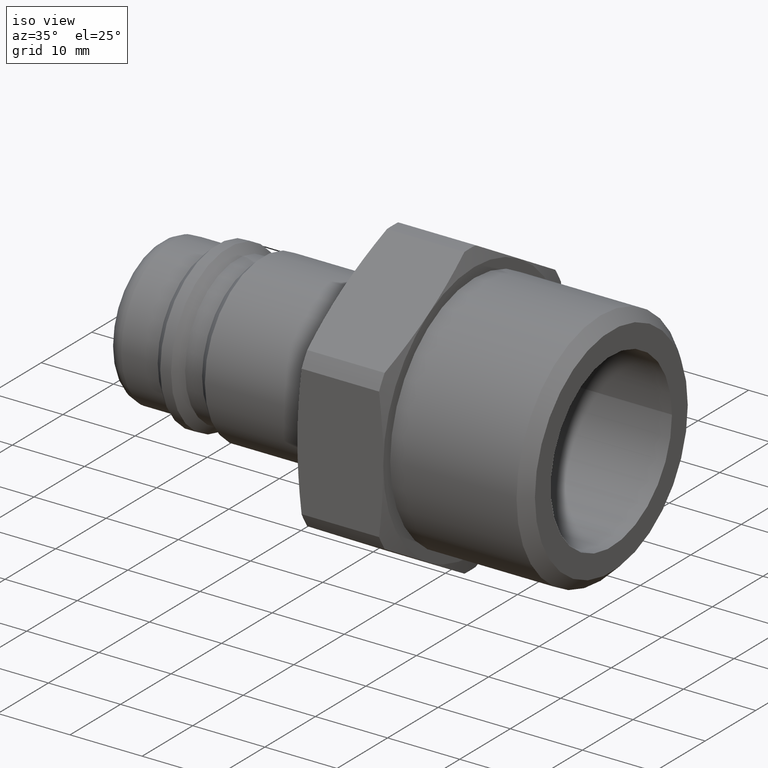
[diagram: clean part render]
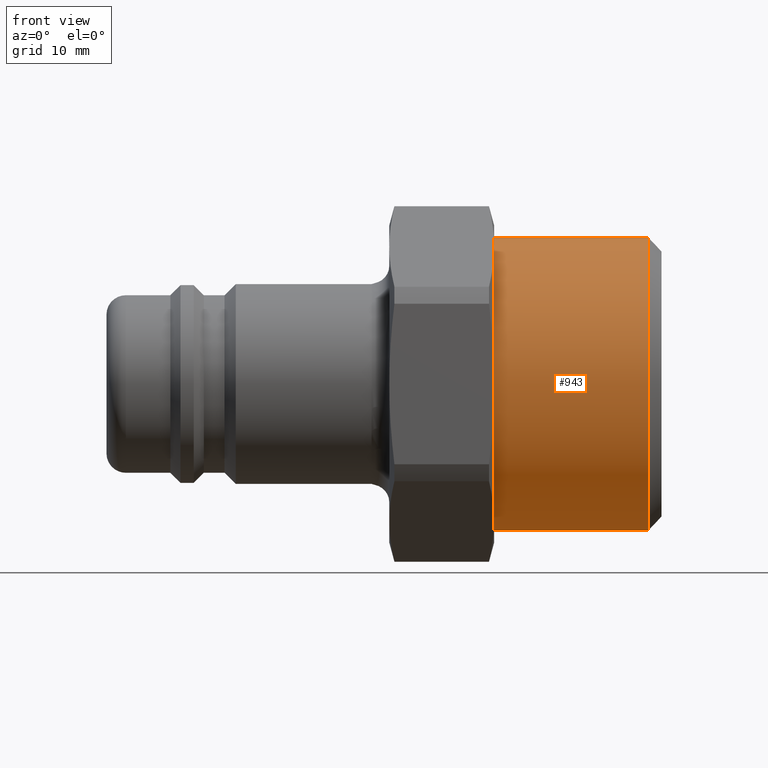
[diagram: tour spotlight — one face highlighted and labeled with its STEP entity id]
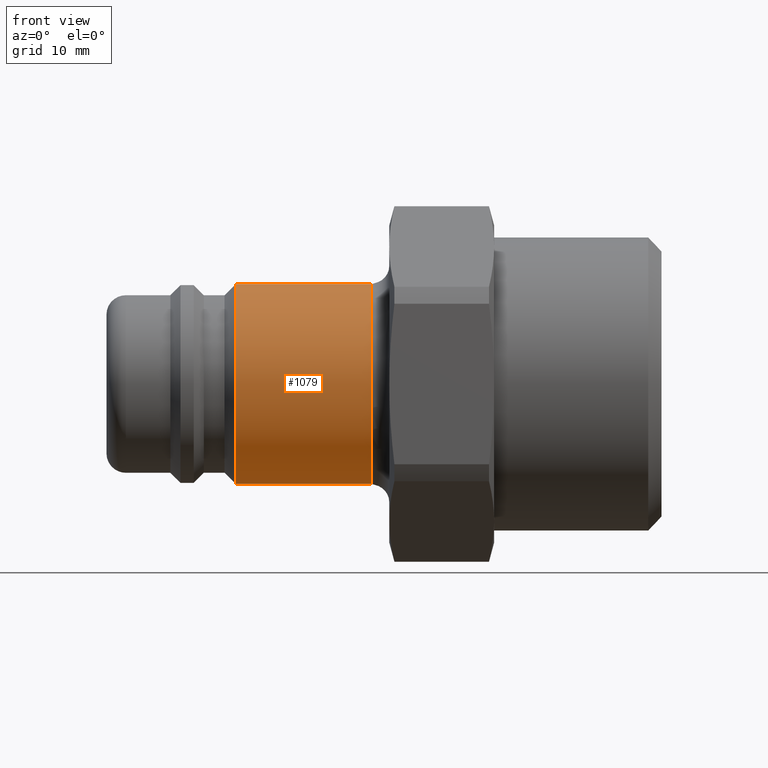
[diagram: tour spotlight — one face highlighted and labeled with its STEP entity id]
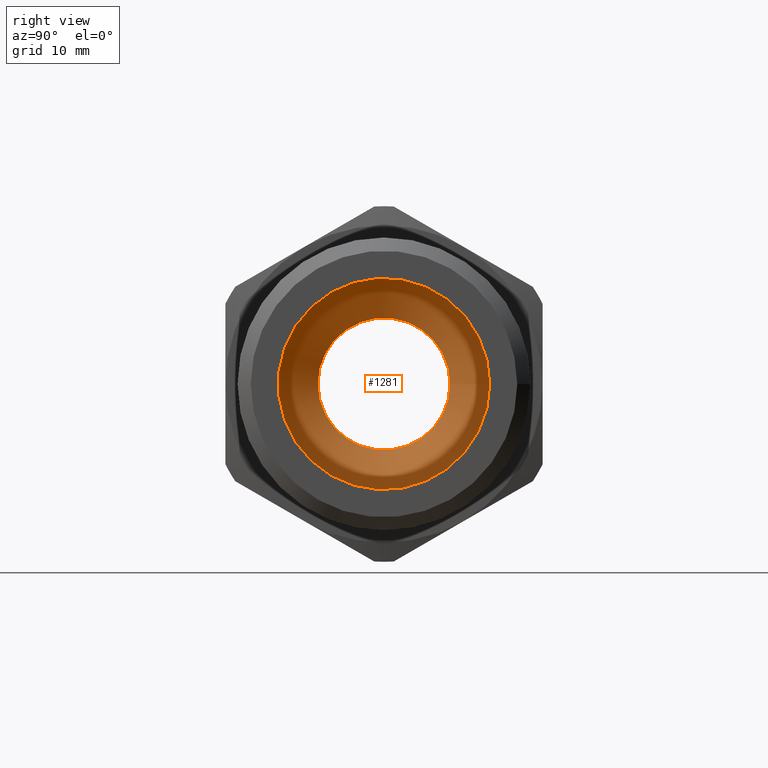
[diagram: tour spotlight — one face highlighted and labeled with its STEP entity id]
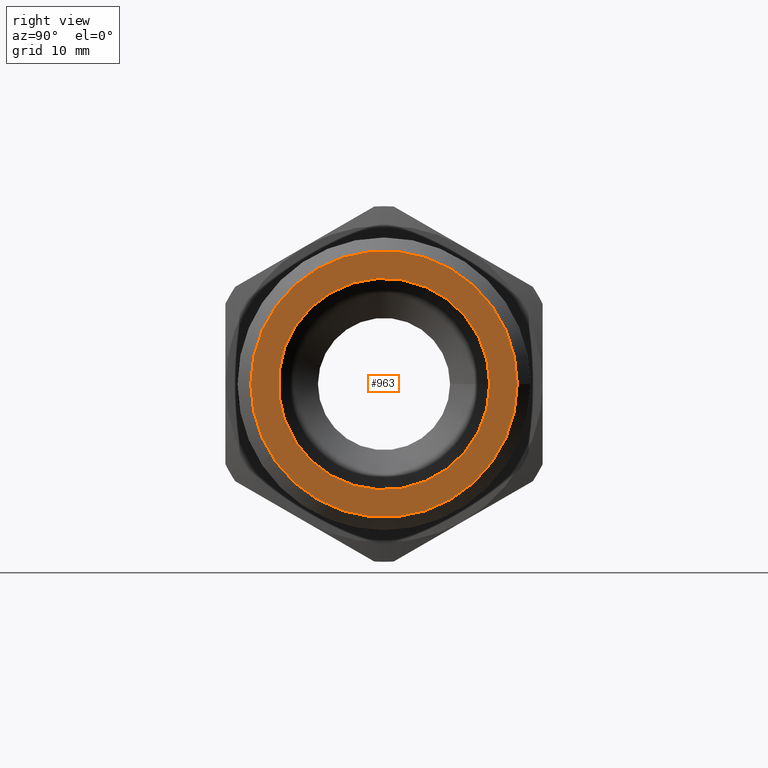
[diagram: tour spotlight — one face highlighted and labeled with its STEP entity id]
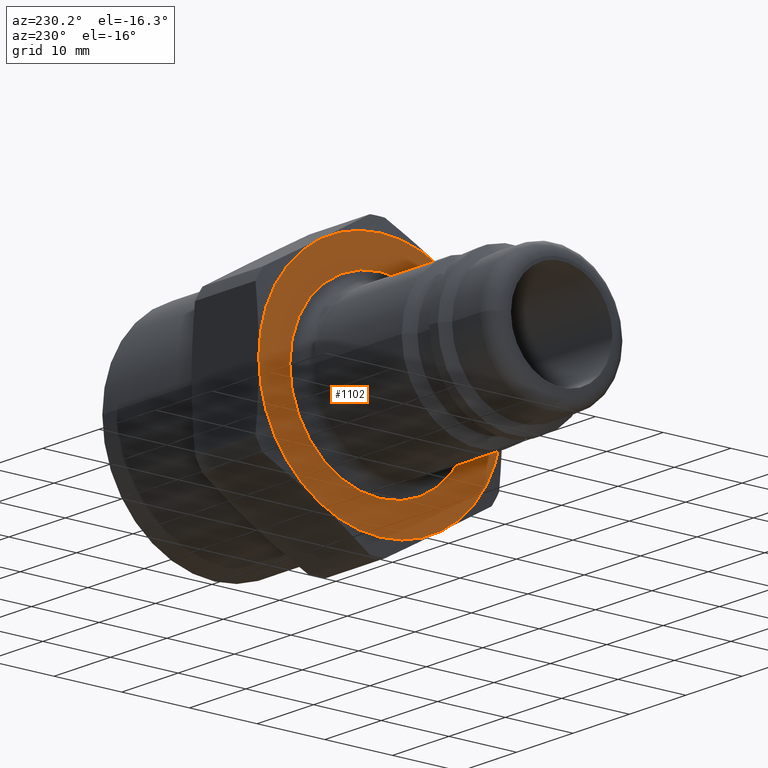
[diagram: tour spotlight — one face highlighted and labeled with its STEP entity id]
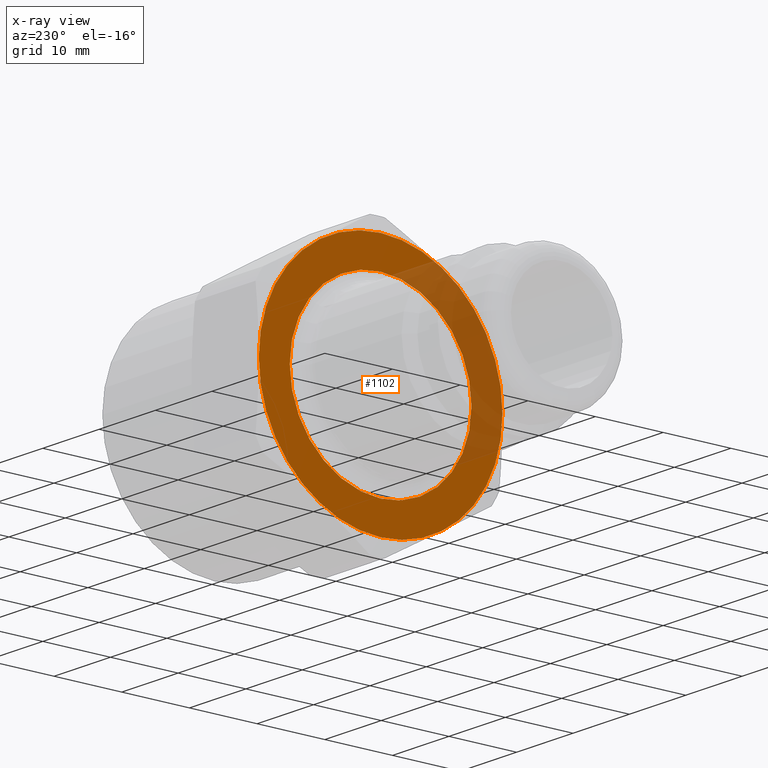
[diagram: x-ray of the same camera — body ghosted, this tour face saturated]
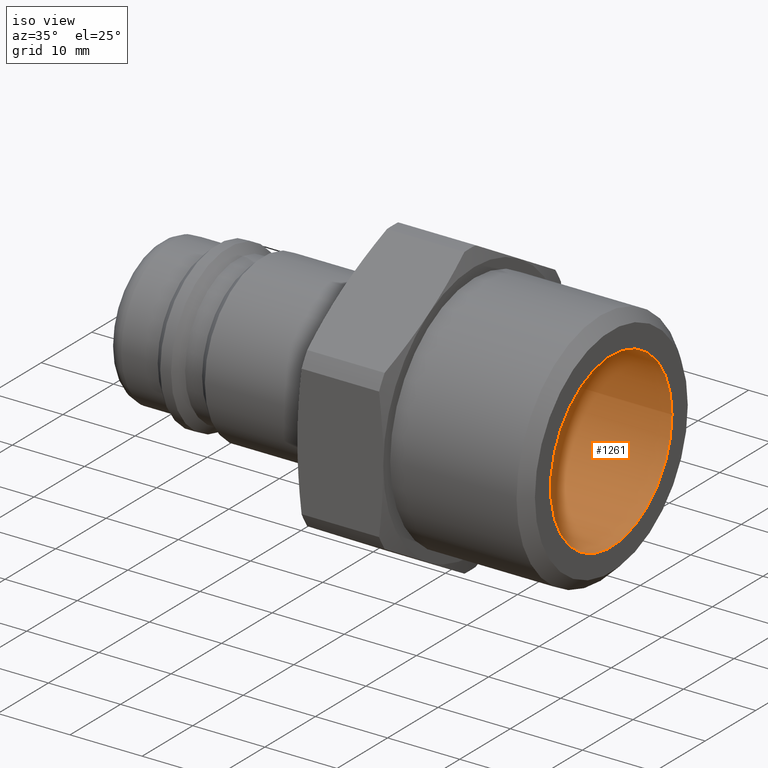
[diagram: tour spotlight — one face highlighted and labeled with its STEP entity id]
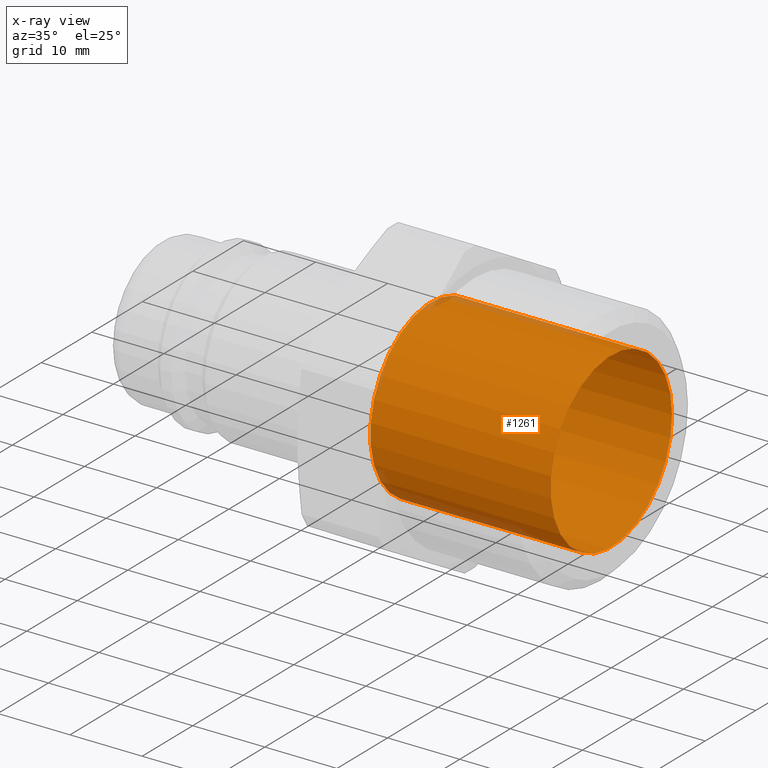
[diagram: x-ray of the same camera — body ghosted, this tour face saturated]
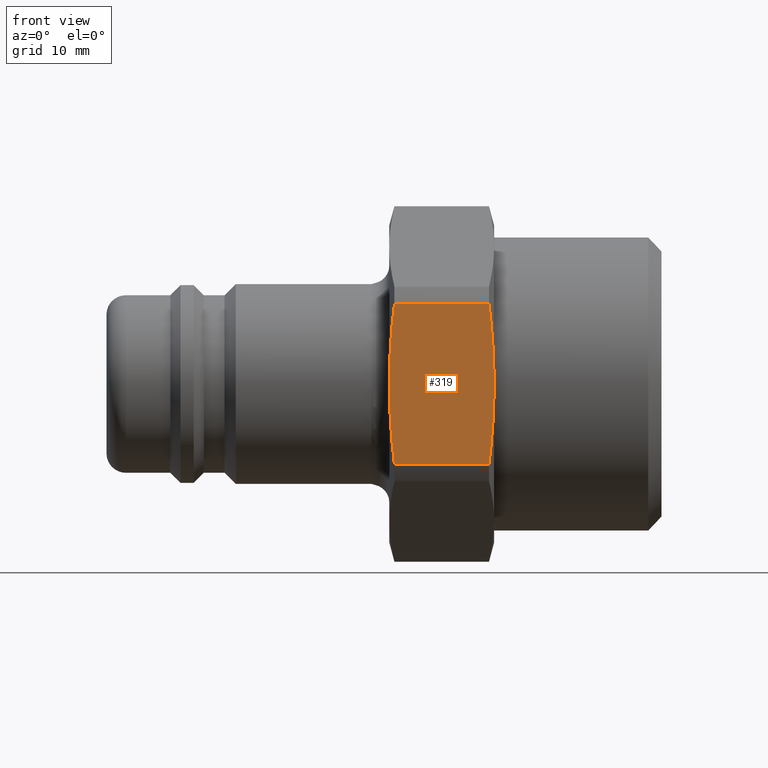
[diagram: tour spotlight — one face highlighted and labeled with its STEP entity id]
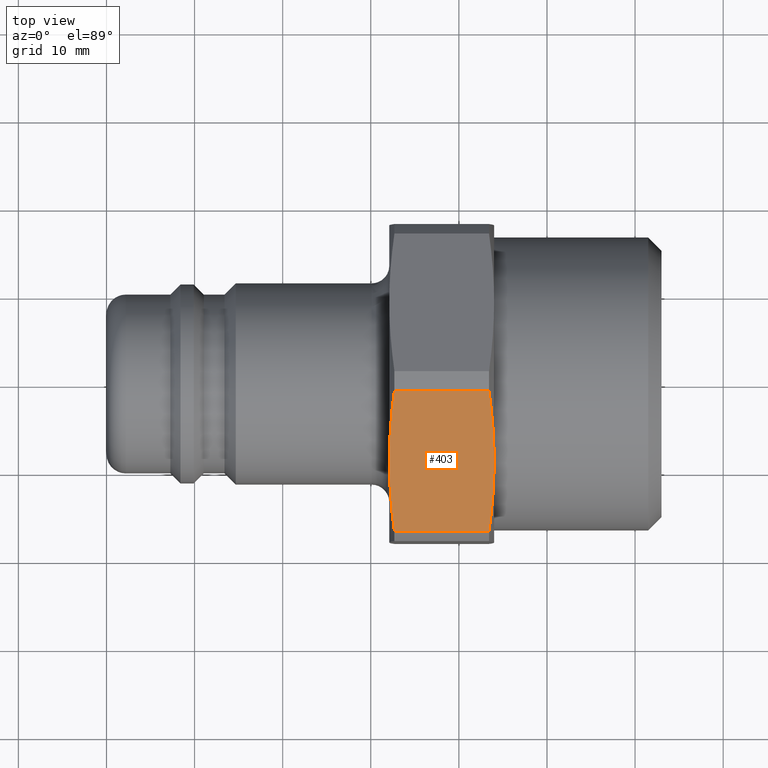
[diagram: tour spotlight — one face highlighted and labeled with its STEP entity id]
A machine part: a face-by-face anatomy tour. The part has 42 B-rep faces; the first image is the clean iso view, then the 8 largest visible faces are spotlighted one at a time (largest first), each with its STEP entity span.

Face 1 — front view, entity #943. In plain terms, the highlighted cylindrical surface (bore or boss wall) has radius 16.6245 mm, axis along (1, 0, 0).
Definition (entity closure, byte-faithful):
#901=CARTESIAN_POINT('',(61.5,16.624500000000005,2.035914E-015));
#902=VERTEX_POINT('',#901);
#903=CARTESIAN_POINT('',(61.5,0.0,0.0));
#904=DIRECTION('',(1.0,0.0,0.0));
#905=DIRECTION('',(0.0,-1.0,0.0));
#906=AXIS2_PLACEMENT_3D('',#903,#904,#905);
#907=CIRCLE('',#906,16.624500000000005);
#908=EDGE_CURVE('',#902,#902,#907,.T.);
#924=CARTESIAN_POINT('',(53.500000000000007,0.0,0.0));
#925=DIRECTION('',(1.0,0.0,0.0));
#926=DIRECTION('',(0.0,1.0,0.0));
#927=AXIS2_PLACEMENT_3D('',#924,#925,#926);
#928=CYLINDRICAL_SURFACE('',#927,16.624500000000005);
#929=CARTESIAN_POINT('',(44.0,16.624500000000005,0.0));
#930=VERTEX_POINT('',#929);
#931=CARTESIAN_POINT('',(44.0,0.0,0.0));
#932=DIRECTION('',(1.0,0.0,0.0));
#933=DIRECTION('',(0.0,1.0,0.0));
#934=AXIS2_PLACEMENT_3D('',#931,#932,#933);
#935=CIRCLE('',#934,16.624500000000005);
#936=EDGE_CURVE('',#930,#930,#935,.T.);
#937=ORIENTED_EDGE('',*,*,#936,.T.);
#938=EDGE_LOOP('',(#937));
#939=FACE_OUTER_BOUND('',#938,.T.);
#940=ORIENTED_EDGE('',*,*,#908,.F.);
#941=EDGE_LOOP('',(#940));
#942=FACE_BOUND('',#941,.T.);
#943=ADVANCED_FACE('',(#939,#942),#928,.T.);

Face 2 — front view, entity #1079. In plain terms, the highlighted cylindrical surface (bore or boss wall) has radius 11.425 mm, axis along (1, 0, 0).
Definition (entity closure, byte-faithful):
#1037=CARTESIAN_POINT('',(30.100000000000001,11.425000000000001,0.0));
#1038=VERTEX_POINT('',#1037);
#1039=CARTESIAN_POINT('',(30.100000000000001,0.0,0.0));
#1040=DIRECTION('',(1.0,0.0,0.0));
#1041=DIRECTION('',(0.0,-1.0,0.0));
#1042=AXIS2_PLACEMENT_3D('',#1039,#1040,#1041);
#1043=CIRCLE('',#1042,11.425000000000001);
#1044=EDGE_CURVE('',#1038,#1038,#1043,.T.);
#1060=CARTESIAN_POINT('',(23.387500000000003,0.0,0.0));
#1061=DIRECTION('',(1.0,0.0,0.0));
#1062=DIRECTION('',(0.0,1.0,0.0));
#1063=AXIS2_PLACEMENT_3D('',#1060,#1061,#1062);
#1064=CYLINDRICAL_SURFACE('',#1063,11.425000000000001);
#1065=CARTESIAN_POINT('',(14.675000000000002,11.424999999999999,0.0));
#1066=VERTEX_POINT('',#1065);
#1067=CARTESIAN_POINT('',(14.675000000000002,0.0,0.0));
#1068=DIRECTION('',(1.0,0.0,0.0));
#1069=DIRECTION('',(0.0,1.0,0.0));
#1070=AXIS2_PLACEMENT_3D('',#1067,#1068,#1069);
#1071=CIRCLE('',#1070,11.424999999999999);
#1072=EDGE_CURVE('',#1066,#1066,#1071,.T.);
#1073=ORIENTED_EDGE('',*,*,#1072,.T.);
#1074=EDGE_LOOP('',(#1073));
#1075=FACE_OUTER_BOUND('',#1074,.T.);
#1076=ORIENTED_EDGE('',*,*,#1044,.F.);
#1077=EDGE_LOOP('',(#1076));
#1078=FACE_BOUND('',#1077,.T.);
#1079=ADVANCED_FACE('',(#1075,#1078),#1064,.T.);

Face 3 — right view, entity #1281. In plain terms, the highlighted conical surface has half-angle 60 deg.
Definition (entity closure, byte-faithful):
#1247=CARTESIAN_POINT('',(38.000000000000007,11.999999999999996,0.0));
#1248=VERTEX_POINT('',#1247);
#1249=CARTESIAN_POINT('',(38.000000000000007,0.0,0.0));
#1250=DIRECTION('',(1.0,0.0,0.0));
#1251=DIRECTION('',(0.0,1.0,0.0));
#1252=AXIS2_PLACEMENT_3D('',#1249,#1250,#1251);
#1253=CIRCLE('',#1252,11.999999999999996);
#1254=EDGE_CURVE('',#1248,#1248,#1253,.T.);
#1262=CARTESIAN_POINT('',(36.700961894323349,0.0,0.0));
#1263=DIRECTION('',(1.0,0.0,0.0));
#1264=DIRECTION('',(0.0,1.0,0.0));
#1265=AXIS2_PLACEMENT_3D('',#1262,#1263,#1264);
#1266=CONICAL_SURFACE('',#1265,9.75,59.999999999999979);
#1267=CARTESIAN_POINT('',(35.401923788646691,7.500000000000002,0.0));
#1268=VERTEX_POINT('',#1267);
#1269=CARTESIAN_POINT('',(35.401923788646691,0.0,0.0));
#1270=DIRECTION('',(1.0,0.0,0.0));
#1271=DIRECTION('',(0.0,1.0,0.0));
#1272=AXIS2_PLACEMENT_3D('',#1269,#1270,#1271);
#1273=CIRCLE('',#1272,7.500000000000002);
#1274=EDGE_CURVE('',#1268,#1268,#1273,.T.);
#1275=ORIENTED_EDGE('',*,*,#1274,.F.);
#1276=EDGE_LOOP('',(#1275));
#1277=FACE_OUTER_BOUND('',#1276,.T.);
#1278=ORIENTED_EDGE('',*,*,#1254,.T.);
#1279=EDGE_LOOP('',(#1278));
#1280=FACE_BOUND('',#1279,.T.);
#1281=ADVANCED_FACE('',(#1277,#1280),#1266,.F.);

Face 4 — right view, entity #963. In plain terms, the highlighted planar face has unit normal (1, 0, 0).
Definition (entity closure, byte-faithful):
#912=CARTESIAN_POINT('',(63.000000000000007,15.124500000000008,-1.852217E-015));
#913=VERTEX_POINT('',#912);
#914=CARTESIAN_POINT('',(63.000000000000007,0.0,0.0));
#915=DIRECTION('',(-1.0,0.0,0.0));
#916=DIRECTION('',(0.0,-1.0,0.0));
#917=AXIS2_PLACEMENT_3D('',#914,#915,#916);
#918=CIRCLE('',#917,15.124500000000008);
#919=EDGE_CURVE('',#913,#913,#918,.T.);
#944=CARTESIAN_POINT('',(63.000000000000007,14.312250000000004,0.0));
#945=DIRECTION('',(1.0,0.0,0.0));
#946=DIRECTION('',(0.0,0.0,-1.0));
#947=AXIS2_PLACEMENT_3D('',#944,#945,#946);
#948=PLANE('',#947);
#949=ORIENTED_EDGE('',*,*,#919,.F.);
#950=EDGE_LOOP('',(#949));
#951=FACE_OUTER_BOUND('',#950,.T.);
#952=CARTESIAN_POINT('',(63.000000000000007,12.000000000000004,0.0));
#953=VERTEX_POINT('',#952);
#954=CARTESIAN_POINT('',(63.000000000000007,0.0,0.0));
#955=DIRECTION('',(1.0,0.0,0.0));
#956=DIRECTION('',(0.0,1.0,0.0));
#957=AXIS2_PLACEMENT_3D('',#954,#955,#956);
#958=CIRCLE('',#957,12.000000000000004);
#959=EDGE_CURVE('',#953,#953,#958,.T.);
#960=ORIENTED_EDGE('',*,*,#959,.F.);
#961=EDGE_LOOP('',(#960));
#962=FACE_BOUND('',#961,.T.);
#963=ADVANCED_FACE('',(#951,#962),#948,.T.);

Face 5 — auxiliary view, entity #1102. An x-ray twin of the same camera follows (body ghosted, this face saturated) — the face is partly hidden behind the body. In plain terms, the highlighted planar face has unit normal (-1, 0, 0).
Definition (entity closure, byte-faithful):
#75=CARTESIAN_POINT('',(32.100000000000009,8.999999999999986,-15.588457268119901));
#76=VERTEX_POINT('',#75);
#159=CARTESIAN_POINT('',(32.100000000000009,-9.000000000000007,-15.588457268119891));
#160=VERTEX_POINT('',#159);
#243=CARTESIAN_POINT('',(32.100000000000009,-18.000000000000004,2.997602E-015));
#244=VERTEX_POINT('',#243);
#327=CARTESIAN_POINT('',(32.100000000000009,-8.999999999999996,15.5884572681199));
#328=VERTEX_POINT('',#327);
#411=CARTESIAN_POINT('',(32.100000000000009,9.000000000000002,15.588457268119896));
#412=VERTEX_POINT('',#411);
#772=CARTESIAN_POINT('',(32.100000000000001,18.0,0.0));
#773=VERTEX_POINT('',#772);
#774=CARTESIAN_POINT('',(32.100000000000001,0.0,0.0));
#775=DIRECTION('',(1.0,0.0,0.0));
#776=DIRECTION('',(0.0,1.0,0.0));
#777=AXIS2_PLACEMENT_3D('',#774,#775,#776);
#778=CIRCLE('',#777,18.0);
#779=EDGE_CURVE('',#76,#773,#778,.T.);
#818=CARTESIAN_POINT('',(32.100000000000001,0.0,0.0));
#819=DIRECTION('',(1.0,0.0,0.0));
#820=DIRECTION('',(0.0,1.0,0.0));
#821=AXIS2_PLACEMENT_3D('',#818,#819,#820);
#822=CIRCLE('',#821,18.0);
#823=EDGE_CURVE('',#773,#412,#822,.T.);
#836=CARTESIAN_POINT('',(32.100000000000001,0.0,0.0));
#837=DIRECTION('',(1.0,0.0,0.0));
#838=DIRECTION('',(0.0,1.0,0.0));
#839=AXIS2_PLACEMENT_3D('',#836,#837,#838);
#840=CIRCLE('',#839,18.0);
#841=EDGE_CURVE('',#412,#328,#840,.T.);
#854=CARTESIAN_POINT('',(32.100000000000001,0.0,0.0));
#855=DIRECTION('',(1.0,0.0,0.0));
#856=DIRECTION('',(0.0,1.0,0.0));
#857=AXIS2_PLACEMENT_3D('',#854,#855,#856);
#858=CIRCLE('',#857,18.0);
#859=EDGE_CURVE('',#328,#244,#858,.T.);
#872=CARTESIAN_POINT('',(32.100000000000001,0.0,0.0));
#873=DIRECTION('',(1.0,0.0,0.0));
#874=DIRECTION('',(0.0,1.0,0.0));
#875=AXIS2_PLACEMENT_3D('',#872,#873,#874);
#876=CIRCLE('',#875,18.0);
#877=EDGE_CURVE('',#244,#160,#876,.T.);
#1048=CARTESIAN_POINT('',(32.100000000000001,13.425000000000001,-3.288177E-015));
#1049=VERTEX_POINT('',#1048);
#1050=CARTESIAN_POINT('',(32.100000000000001,0.0,0.0));
#1051=DIRECTION('',(-1.0,0.0,0.0));
#1052=DIRECTION('',(0.0,-1.0,0.0));
#1053=AXIS2_PLACEMENT_3D('',#1050,#1051,#1052);
#1054=CIRCLE('',#1053,13.425000000000001);
#1055=EDGE_CURVE('',#1049,#1049,#1054,.T.);
#1080=CARTESIAN_POINT('',(32.100000000000001,14.712500000000002,0.0));
#1081=DIRECTION('',(-1.0,0.0,0.0));
#1082=DIRECTION('',(0.0,0.0,1.0));
#1083=AXIS2_PLACEMENT_3D('',#1080,#1081,#1082);
#1084=PLANE('',#1083);
#1085=ORIENTED_EDGE('',*,*,#823,.F.);
#1086=ORIENTED_EDGE('',*,*,#779,.F.);
#1087=CARTESIAN_POINT('',(32.100000000000001,0.0,0.0));
#1088=DIRECTION('',(1.0,0.0,0.0));
#1089=DIRECTION('',(0.0,1.0,0.0));
#1090=AXIS2_PLACEMENT_3D('',#1087,#1088,#1089);
#1091=CIRCLE('',#1090,18.0);
#1092=EDGE_CURVE('',#160,#76,#1091,.T.);
#1093=ORIENTED_EDGE('',*,*,#1092,.F.);
#1094=ORIENTED_EDGE('',*,*,#877,.F.);
#1095=ORIENTED_EDGE('',*,*,#859,.F.);
#1096=ORIENTED_EDGE('',*,*,#841,.F.);
#1097=EDGE_LOOP('',(#1085,#1086,#1093,#1094,#1095,#1096));
#1098=FACE_OUTER_BOUND('',#1097,.T.);
#1099=ORIENTED_EDGE('',*,*,#1055,.F.);
#1100=EDGE_LOOP('',(#1099));
#1101=FACE_BOUND('',#1100,.T.);
#1102=ADVANCED_FACE('',(#1098,#1101),#1084,.T.);

Face 6 — iso view, entity #1261. An x-ray twin of the same camera follows (body ghosted, this face saturated) — the face is partly hidden behind the body. In plain terms, the highlighted cylindrical surface (bore or boss wall) has radius 12 mm, axis along (1, 0, 0).
Definition (entity closure, byte-faithful):
#952=CARTESIAN_POINT('',(63.000000000000007,12.000000000000004,0.0));
#953=VERTEX_POINT('',#952);
#954=CARTESIAN_POINT('',(63.000000000000007,0.0,0.0));
#955=DIRECTION('',(1.0,0.0,0.0));
#956=DIRECTION('',(0.0,1.0,0.0));
#957=AXIS2_PLACEMENT_3D('',#954,#955,#956);
#958=CIRCLE('',#957,12.000000000000004);
#959=EDGE_CURVE('',#953,#953,#958,.T.);
#1242=CARTESIAN_POINT('',(50.500000000000007,0.0,0.0));
#1243=DIRECTION('',(1.0,0.0,0.0));
#1244=DIRECTION('',(0.0,1.0,0.0));
#1245=AXIS2_PLACEMENT_3D('',#1242,#1243,#1244);
#1246=CYLINDRICAL_SURFACE('',#1245,12.000000000000002);
#1247=CARTESIAN_POINT('',(38.000000000000007,11.999999999999996,0.0));
#1248=VERTEX_POINT('',#1247);
#1249=CARTESIAN_POINT('',(38.000000000000007,0.0,0.0));
#1250=DIRECTION('',(1.0,0.0,0.0));
#1251=DIRECTION('',(0.0,1.0,0.0));
#1252=AXIS2_PLACEMENT_3D('',#1249,#1250,#1251);
#1253=CIRCLE('',#1252,11.999999999999996);
#1254=EDGE_CURVE('',#1248,#1248,#1253,.T.);
#1255=ORIENTED_EDGE('',*,*,#1254,.F.);
#1256=EDGE_LOOP('',(#1255));
#1257=FACE_OUTER_BOUND('',#1256,.T.);
#1258=ORIENTED_EDGE('',*,*,#959,.T.);
#1259=EDGE_LOOP('',(#1258));
#1260=FACE_BOUND('',#1259,.T.);
#1261=ADVANCED_FACE('',(#1257,#1260),#1246,.F.);

Face 7 — front view, entity #319. In plain terms, the highlighted planar face has unit normal (0, 1, 0).
Definition (entity closure, byte-faithful):
#236=CARTESIAN_POINT('',(31.403086659045094,-18.000000000000004,3.330669E-015));
#237=DIRECTION('',(0.0,1.0,0.0));
#238=DIRECTION('',(1.0,0.0,0.0));
#239=AXIS2_PLACEMENT_3D('',#236,#237,#238);
#240=PLANE('',#239);
#241=CARTESIAN_POINT('',(32.682789493537697,-18.000000000000004,-9.112114189363515));
#242=VERTEX_POINT('',#241);
#243=CARTESIAN_POINT('',(32.100000000000009,-18.000000000000004,2.997602E-015));
#244=VERTEX_POINT('',#243);
#245=CARTESIAN_POINT('',(32.682789493537697,-18.000000000000004,-9.112114189363492));
#246=CARTESIAN_POINT('',(32.100000000000016,-18.000000000000004,-4.296478203236299));
#247=CARTESIAN_POINT('',(32.100000000000009,-18.000000000000004,2.997602E-015));
#255=(BOUNDED_CURVE()B_SPLINE_CURVE(2,(#245,#246,#247),.UNSPECIFIED.,.F.,.U.)B_SPLINE_CURVE_WITH_KNOTS((3,3),(0.0,0.913497495889389),.UNSPECIFIED.)CURVE()GEOMETRIC_REPRESENTATION_ITEM()RATIONAL_B_SPLINE_CURVE((1.0,1.02976534543879,1.0))REPRESENTATION_ITEM(''));
#256=EDGE_CURVE('',#242,#244,#255,.T.);
#257=ORIENTED_EDGE('',*,*,#256,.F.);
#258=CARTESIAN_POINT('',(43.417210506462297,-18.000000000000004,-9.112114189363515));
#259=VERTEX_POINT('',#258);
#260=CARTESIAN_POINT('',(43.417210506462297,-18.000000000000004,-9.112114189363515));
#261=DIRECTION('',(-1.0,0.0,0.0));
#262=VECTOR('',#261,10.734421012924599);
#263=LINE('',#260,#262);
#264=EDGE_CURVE('',#259,#242,#263,.T.);
#265=ORIENTED_EDGE('',*,*,#264,.F.);
#266=CARTESIAN_POINT('',(43.999999999999993,-18.000000000000004,2.997602E-015));
#267=VERTEX_POINT('',#266);
#268=CARTESIAN_POINT('',(43.999999999999993,-18.000000000000004,2.997602E-015));
#269=CARTESIAN_POINT('',(44.0,-18.000000000000004,-4.296478203236294));
#270=CARTESIAN_POINT('',(43.417210506462297,-18.000000000000004,-9.112114189363545));
#278=(BOUNDED_CURVE()B_SPLINE_CURVE(2,(#268,#269,#270),.UNSPECIFIED.,.F.,.U.)B_SPLINE_CURVE_WITH_KNOTS((3,3),(0.913497495889395,1.826994991778789),.UNSPECIFIED.)CURVE()GEOMETRIC_REPRESENTATION_ITEM()RATIONAL_B_SPLINE_CURVE((1.0,1.029765345438739,1.0))REPRESENTATION_ITEM(''));
#279=EDGE_CURVE('',#267,#259,#278,.T.);
#280=ORIENTED_EDGE('',*,*,#279,.F.);
#281=CARTESIAN_POINT('',(43.417210506462297,-18.0,9.112114189363522));
#282=VERTEX_POINT('',#281);
#283=CARTESIAN_POINT('',(43.417210506462297,-18.0,9.112114189363554));
#284=CARTESIAN_POINT('',(44.0,-18.000000000000004,4.296478203236301));
#285=CARTESIAN_POINT('',(43.999999999999993,-18.000000000000004,2.997602E-015));
#293=(BOUNDED_CURVE()B_SPLINE_CURVE(2,(#283,#284,#285),.UNSPECIFIED.,.F.,.U.)B_SPLINE_CURVE_WITH_KNOTS((3,3),(0.0,0.913497495889395),.UNSPECIFIED.)CURVE()GEOMETRIC_REPRESENTATION_ITEM()RATIONAL_B_SPLINE_CURVE((1.0,1.029765345438729,1.0))REPRESENTATION_ITEM(''));
#294=EDGE_CURVE('',#282,#267,#293,.T.);
#295=ORIENTED_EDGE('',*,*,#294,.F.);
#296=CARTESIAN_POINT('',(32.682789493537697,-18.0,9.112114189363522));
#297=VERTEX_POINT('',#296);
#298=CARTESIAN_POINT('',(32.682789493537697,-18.0,9.112114189363522));
#299=DIRECTION('',(1.0,0.0,0.0));
#300=VECTOR('',#299,10.734421012924599);
#301=LINE('',#298,#300);
#302=EDGE_CURVE('',#297,#282,#301,.T.);
#303=ORIENTED_EDGE('',*,*,#302,.F.);
#304=CARTESIAN_POINT('',(32.100000000000009,-18.000000000000004,2.997602E-015));
#305=CARTESIAN_POINT('',(32.100000000000016,-18.000000000000004,4.296478203236307));
#306=CARTESIAN_POINT('',(32.682789493537697,-18.0,9.112114189363499));
#314=(BOUNDED_CURVE()B_SPLINE_CURVE(2,(#304,#305,#306),.UNSPECIFIED.,.F.,.U.)B_SPLINE_CURVE_WITH_KNOTS((3,3),(0.913497495889389,1.826994991778778),.UNSPECIFIED.)CURVE()GEOMETRIC_REPRESENTATION_ITEM()RATIONAL_B_SPLINE_CURVE((1.0,1.029765345438782,1.0))REPRESENTATION_ITEM(''));
#315=EDGE_CURVE('',#244,#297,#314,.T.);
#316=ORIENTED_EDGE('',*,*,#315,.F.);
#317=EDGE_LOOP('',(#257,#265,#280,#295,#303,#316));
#318=FACE_OUTER_BOUND('',#317,.T.);
#319=ADVANCED_FACE('',(#318),#240,.F.);

Face 8 — top view, entity #403. In plain terms, the highlighted planar face has unit normal (0, 0.5, -0.866).
Definition (entity closure, byte-faithful):
#320=CARTESIAN_POINT('',(31.403086659045094,-8.999999999999996,15.5884572681199));
#321=DIRECTION('',(0.0,0.5,-0.866025403784439));
#322=DIRECTION('',(1.0,0.0,0.0));
#323=AXIS2_PLACEMENT_3D('',#320,#321,#322);
#324=PLANE('',#323);
#325=CARTESIAN_POINT('',(32.682789493537697,-16.891322370173455,11.032400173438139));
#326=VERTEX_POINT('',#325);
#327=CARTESIAN_POINT('',(32.100000000000009,-8.999999999999996,15.5884572681199));
#328=VERTEX_POINT('',#327);
#329=CARTESIAN_POINT('',(32.682789493537697,-16.891322370173437,11.032400173438152));
#330=CARTESIAN_POINT('',(32.100000000000016,-12.720859270808768,13.440218166501744));
#331=CARTESIAN_POINT('',(32.100000000000009,-8.999999999999996,15.5884572681199));
#339=(BOUNDED_CURVE()B_SPLINE_CURVE(2,(#329,#330,#331),.UNSPECIFIED.,.F.,.U.)B_SPLINE_CURVE_WITH_KNOTS((3,3),(0.0,0.91349749588939),.UNSPECIFIED.)CURVE()GEOMETRIC_REPRESENTATION_ITEM()RATIONAL_B_SPLINE_CURVE((1.0,1.029765345438777,1.0))REPRESENTATION_ITEM(''));
#340=EDGE_CURVE('',#326,#328,#339,.T.);
#341=ORIENTED_EDGE('',*,*,#340,.F.);
#342=CARTESIAN_POINT('',(43.417210506462297,-16.891322370173455,11.032400173438139));
#343=VERTEX_POINT('',#342);
#344=CARTESIAN_POINT('',(43.417210506462297,-16.891322370173455,11.032400173438139));
#345=DIRECTION('',(-1.0,0.0,0.0));
#346=VECTOR('',#345,10.734421012924599);
#347=LINE('',#344,#346);
#348=EDGE_CURVE('',#343,#326,#347,.T.);
#349=ORIENTED_EDGE('',*,*,#348,.F.);
#350=CARTESIAN_POINT('',(43.999999999999993,-8.999999999999996,15.5884572681199));
#351=VERTEX_POINT('',#350);
#352=CARTESIAN_POINT('',(43.999999999999993,-8.999999999999996,15.5884572681199));
#353=CARTESIAN_POINT('',(44.0,-12.720859270808711,13.440218166501776));
#354=CARTESIAN_POINT('',(43.417210506462297,-16.891322370173476,11.032400173438129));
#362=(BOUNDED_CURVE()B_SPLINE_CURVE(2,(#352,#353,#354),.UNSPECIFIED.,.F.,.U.)B_SPLINE_CURVE_WITH_KNOTS((3,3),(0.913497495889395,1.826994991778789),.UNSPECIFIED.)CURVE()GEOMETRIC_REPRESENTATION_ITEM()RATIONAL_B_SPLINE_CURVE((1.0,1.029765345438747,1.0))REPRESENTATION_ITEM(''));
#363=EDGE_CURVE('',#351,#343,#362,.T.);
#364=ORIENTED_EDGE('',*,*,#363,.F.);
#365=CARTESIAN_POINT('',(43.417210506462297,-1.108677629826538,20.144514362801658));
#366=VERTEX_POINT('',#365);
#367=CARTESIAN_POINT('',(43.417210506462297,-1.108677629826513,20.144514362801672));
#368=CARTESIAN_POINT('',(44.0,-5.27914072919128,17.736696369738027));
#369=CARTESIAN_POINT('',(43.999999999999993,-8.999999999999996,15.5884572681199));
#377=(BOUNDED_CURVE()B_SPLINE_CURVE(2,(#367,#368,#369),.UNSPECIFIED.,.F.,.U.)B_SPLINE_CURVE_WITH_KNOTS((3,3),(0.0,0.913497495889395),.UNSPECIFIED.)CURVE()GEOMETRIC_REPRESENTATION_ITEM()RATIONAL_B_SPLINE_CURVE((1.0,1.029765345438745,1.0))REPRESENTATION_ITEM(''));
#378=EDGE_CURVE('',#366,#351,#377,.T.);
#379=ORIENTED_EDGE('',*,*,#378,.F.);
#380=CARTESIAN_POINT('',(32.682789493537697,-1.108677629826538,20.144514362801658));
#381=VERTEX_POINT('',#380);
#382=CARTESIAN_POINT('',(32.682789493537697,-1.108677629826538,20.144514362801658));
#383=DIRECTION('',(1.0,0.0,0.0));
#384=VECTOR('',#383,10.734421012924599);
#385=LINE('',#382,#384);
#386=EDGE_CURVE('',#381,#366,#385,.T.);
#387=ORIENTED_EDGE('',*,*,#386,.F.);
#388=CARTESIAN_POINT('',(32.100000000000009,-8.999999999999996,15.5884572681199));
#389=CARTESIAN_POINT('',(32.100000000000016,-5.279140729191224,17.736696369738056));
#390=CARTESIAN_POINT('',(32.682789493537697,-1.108677629826556,20.144514362801647));
#398=(BOUNDED_CURVE()B_SPLINE_CURVE(2,(#388,#389,#390),.UNSPECIFIED.,.F.,.U.)B_SPLINE_CURVE_WITH_KNOTS((3,3),(0.91349749588939,1.826994991778779),.UNSPECIFIED.)CURVE()GEOMETRIC_REPRESENTATION_ITEM()RATIONAL_B_SPLINE_CURVE((1.0,1.029765345438785,1.0))REPRESENTATION_ITEM(''));
#399=EDGE_CURVE('',#328,#381,#398,.T.);
#400=ORIENTED_EDGE('',*,*,#399,.F.);
#401=EDGE_LOOP('',(#341,#349,#364,#379,#387,#400));
#402=FACE_OUTER_BOUND('',#401,.T.);
#403=ADVANCED_FACE('',(#402),#324,.F.);